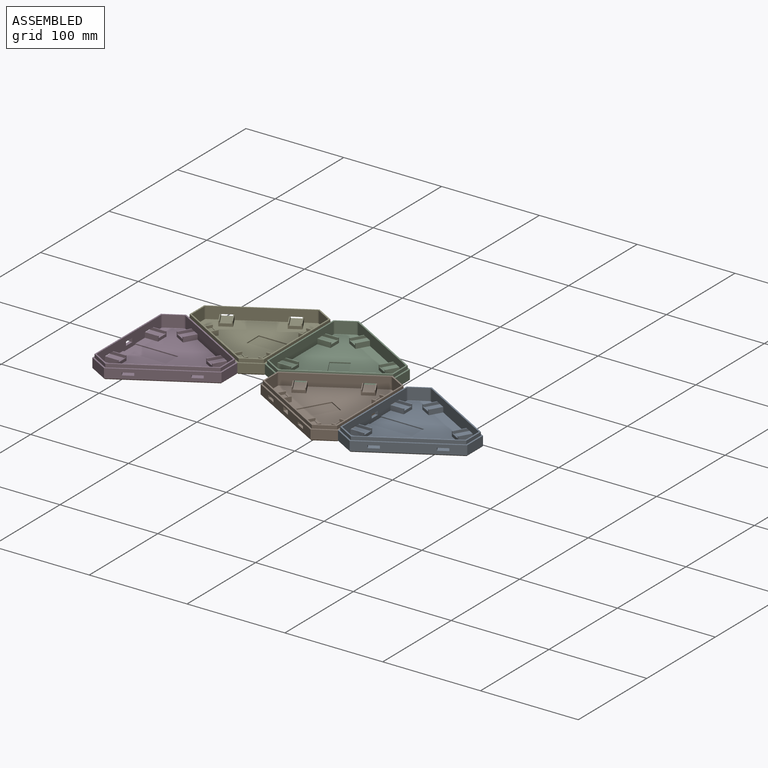
[diagram: assembled view]
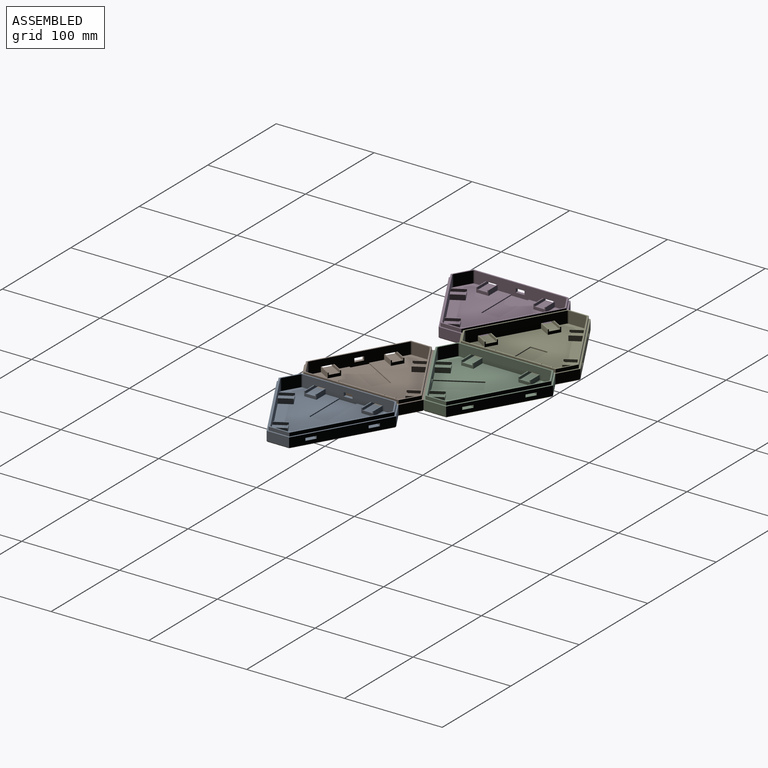
[diagram: assembled view, second angle]
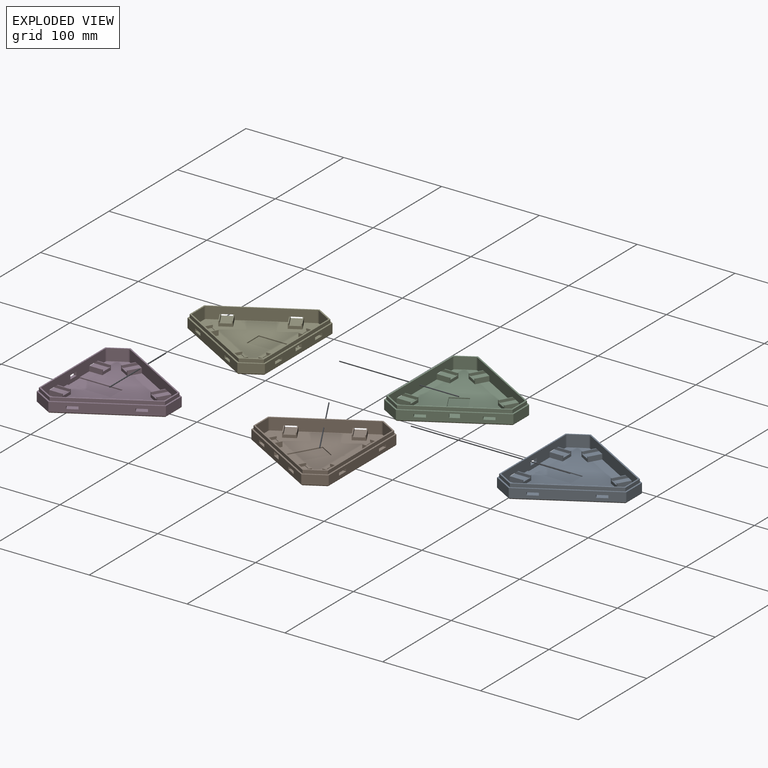
[diagram: exploded view]
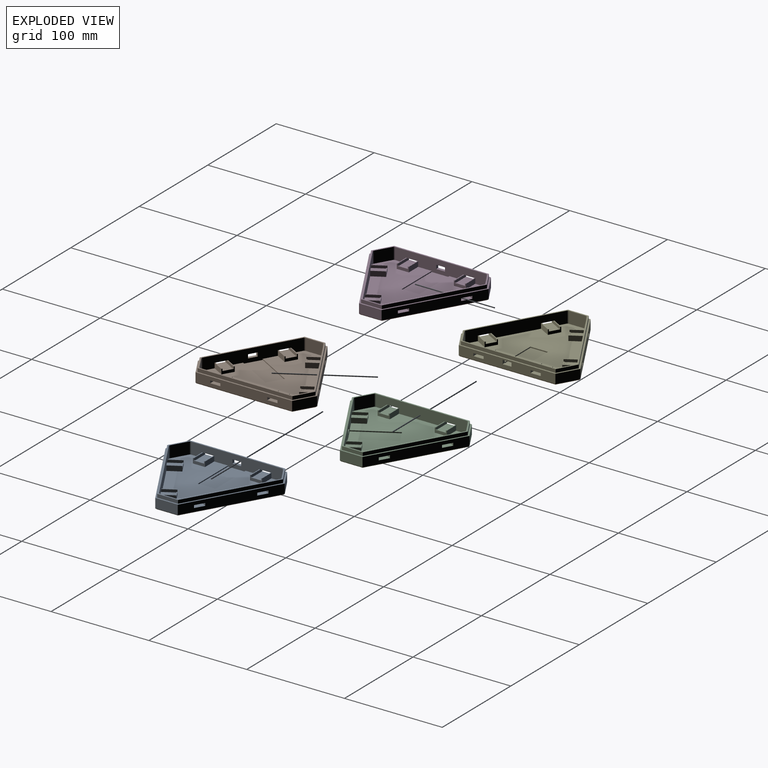
[diagram: exploded view, second angle]
ASSEMBLY  parts=5 mates=4
PART A: 108 faces, bbox 105.6x121.9x14 mm
  f0: plane 98.81x9.5mm, normal (-1,0,0), area 847.5mm2, adj f2,f3,f4,f15,f17,f22,f31,f42
  f1: plane 93.04x13mm, normal (1,0,0), area 972.9mm2, adj f32,f36,f44,f45,f80,f81,f82,f83
  f2: plane 15.45x10.4mm, normal (0,0,1), area 160.7mm2, adj f0,f3,f46,f92
  f3: plane 16.45x2.7mm, normal (0,1,0), area 43.9mm2, adj f0,f2,f45,f83,f84,f92,f93
  f4: plane 15.45x10.4mm, normal (0,0,1), area 160.7mm2, adj f0,f42,f43,f90
  f5: plane 18.58x16.73mm, normal (0,0,1), area 160.7mm2, adj f6,f13,f41,f78
  f6: plane 14.25x8.23mm, normal (-0.87,-0.5,0), area 43.9mm2, adj f5,f13,f40,f69,f70,f78,f79
  f7: plane 18.58x16.73mm, normal (0,0,1), area 160.7mm2, adj f13,f37,f39,f76
  f8: plane 18.58x16.73mm, normal (0,0,1), area 160.7mm2, adj f9,f11,f51,f64
  f9: plane 14.25x8.23mm, normal (0.87,-0.5,0), area 43.9mm2, adj f8,f11,f50,f57,f61,f64,f65
  f10: plane 18.58x16.73mm, normal (0,0,1), area 160.7mm2, adj f11,f47,f48,f62
  f11: plane 85.57x49.41mm, normal (0.5,0.87,0), area 882.6mm2, adj f8,f9,f10,f16,f17,f23,f31,f47
  f12: plane 80.57x46.52mm, normal (-0.5,-0.87,0), area 990mm2, adj f32,f36,f49,f50,f52,f53,f54,f55
  f13: plane 85.57x49.41mm, normal (0.5,-0.87,0), area 882.6mm2, adj f5,f6,f7,f15,f16,f19,f31,f37
  f14: plane 80.57x46.52mm, normal (-0.5,0.87,0), area 990mm2, adj f32,f36,f38,f40,f66,f67,f68,f69
  f15: plane 20x11.55mm, normal (-0.5,-0.87,0), area 219.4mm2, adj f0,f13,f20,f31
  f16: plane 23.09x9.5mm, normal (1,0,0), area 219.4mm2, adj f11,f13,f21,f31
  f17: plane 20x11.55mm, normal (-0.5,0.87,0), area 219.4mm2, adj f0,f11,f24,f31
  f18: plane 119.6x103.57mm, normal (0,0,-1), area 8049mm2, adj f19,f20,f21,f22,f23,f24
  f19: plane 85.57x49.98mm, normal (0.35,-0.61,-0.71), area 138.9mm2, adj f13,f18,f20,f21
  f20: plane 20x12.12mm, normal (-0.35,-0.61,-0.71), area 31.8mm2, adj f15,f18,f19,f22
  f21: plane 23.09x1mm, normal (0.71,0,-0.71), area 31.8mm2, adj f16,f18,f19,f23
  f22: plane 98.81x1mm, normal (-0.71,0,-0.71), area 138.9mm2, adj f0,f18,f20,f24
  f23: plane 85.57x49.98mm, normal (0.35,0.61,-0.71), area 138.9mm2, adj f11,f18,f21,f24
  f24: plane 20x12.12mm, normal (-0.35,0.61,-0.71), area 31.8mm2, adj f17,f18,f22,f23
  f25: plane 84.02x48.51mm, normal (0.5,0.87,0), area 339.6mm2, adj f26,f30,f31,f36
  f26: plane 21.3x3.5mm, normal (1,0,0), area 74.6mm2, adj f25,f27,f31,f36
  f27: plane 84.02x48.51mm, normal (0.5,-0.87,0), area 339.6mm2, adj f26,f28,f31,f36
  f28: plane 18.45x10.65mm, normal (-0.5,-0.87,0), area 74.6mm2, adj f27,f29,f31,f36
  f29: plane 97.02x3.5mm, normal (-1,0,0), area 339.6mm2, adj f28,f30,f31,f36
  f30: plane 18.45x10.65mm, normal (-0.5,0.87,0), area 74.6mm2, adj f25,f29,f31,f36
  f31: plane 121.91x105.57mm, normal (0,0,1), area 558.5mm2, adj f0,f11,f13,f15,f16,f17,f25,f26
  f32: plane 114.36x99.57mm, normal (0,0,1), area 5551.3mm2, adj f1,f12,f14,f33,f34,f35,f53,f54
  f33: plane 15x12mm, normal (0.5,-0.87,0), area 207.8mm2, adj f32,f36,f103,f104
  f34: plane 15x12mm, normal (0.5,0.87,0), area 207.8mm2, adj f32,f36,f105,f106
  f35: plane 17.32x12mm, normal (-1,0,0), area 207.8mm2, adj f32,f36,f102,f107
  f36: plane 118.33x102.47mm, normal (0,0,1), area 508.7mm2, adj f1,f12,f14,f25,f26,f27,f28,f29
  f37: plane 14.25x8.23mm, normal (-0.87,-0.5,0), area 43.9mm2, adj f7,f13,f38,f74,f75,f76,f77
  f38: plane 10.51x7.8mm, normal (0,0,-1), area 31.2mm2, adj f13,f14,f37,f39
  f39: plane 14.25x8.23mm, normal (0.87,0.5,0), area 43.9mm2, adj f7,f13,f38,f73,f75,f76,f77
  f40: plane 10.51x7.8mm, normal (0,0,-1), area 31.2mm2, adj f6,f13,f14,f41
  f41: plane 14.25x8.23mm, normal (0.87,0.5,0), area 43.9mm2, adj f5,f13,f40,f68,f70,f78,f79
  f42: plane 16.45x2.7mm, normal (0,-1,0), area 43.9mm2, adj f0,f4,f44,f87,f89,f90,f91
  f43: plane 16.45x2.7mm, normal (0,1,0), area 43.9mm2, adj f0,f4,f44,f88,f89,f90,f91
  f44: plane 10.4x3mm, normal (0,0,-1), area 31.2mm2, adj f0,f1,f42,f43
  f45: plane 10.4x3mm, normal (0,0,-1), area 31.2mm2, adj f0,f1,f3,f46
  f46: plane 16.45x2.7mm, normal (0,-1,0), area 43.9mm2, adj f0,f2,f45,f82,f84,f92,f93
  f47: plane 14.25x8.23mm, normal (-0.87,0.5,0), area 43.9mm2, adj f10,f11,f49,f55,f56,f62,f63
  f48: plane 14.25x8.23mm, normal (0.87,-0.5,0), area 43.9mm2, adj f10,f11,f49,f52,f56,f62,f63
  f49: plane 10.51x7.8mm, normal (0,0,-1), area 31.2mm2, adj f11,f12,f47,f48
  f50: plane 10.51x7.8mm, normal (0,0,-1), area 31.2mm2, adj f9,f11,f12,f51
  f51: plane 14.25x8.23mm, normal (-0.87,0.5,0), area 43.9mm2, adj f8,f11,f50,f60,f61,f64,f65
  f52: plane 12.15x7.59mm, normal (0,0,1), area 13.5mm2, adj f12,f48,f53,f56
  f53: plane 11.65x6.73mm, normal (-0.87,0.5,0), area 68.6mm2, adj f12,f32,f52,f56
  f54: plane 11.65x6.73mm, normal (0.87,-0.5,0), area 68.6mm2, adj f12,f32,f55,f56
  f55: plane 12.15x7.59mm, normal (0,0,1), area 13.4mm2, adj f12,f47,f54,f56
  f56: plane 10.74x6.2mm, normal (-0.5,-0.87,0), area 40.4mm2, adj f32,f47,f48,f52,f53,f54,f55,f63
  f57: plane 12.15x7.59mm, normal (0,0,1), area 13.5mm2, adj f9,f12,f58,f61
  f58: plane 11.65x6.73mm, normal (-0.87,0.5,0), area 68.6mm2, adj f12,f32,f57,f61
  f59: plane 11.65x6.73mm, normal (0.87,-0.5,0), area 68.6mm2, adj f12,f32,f60,f61
  f60: plane 12.15x7.59mm, normal (0,0,1), area 13.4mm2, adj f12,f51,f59,f61
  f61: plane 10.74x6.2mm, normal (-0.5,-0.87,0), area 40.4mm2, adj f9,f32,f51,f57,f58,f59,f60,f65
  f62: plane 9.01x5.2mm, normal (0.5,0.87,0), area 5.2mm2, adj f10,f47,f48,f63
  f63: plane 9.51x6.07mm, normal (0,0,1), area 10.4mm2, adj f47,f48,f56,f62
  f64: plane 9.01x5.2mm, normal (0.5,0.87,0), area 5.2mm2, adj f8,f9,f51,f65
  f65: plane 9.51x6.07mm, normal (0,0,1), area 10.4mm2, adj f9,f51,f61,f64
  f66: plane 11.65x6.73mm, normal (0.87,0.5,0), area 68.6mm2, adj f14,f32,f69,f70
  f67: plane 11.65x6.73mm, normal (-0.87,-0.5,0), area 68.6mm2, adj f14,f32,f68,f70
  f68: plane 12.15x7.59mm, normal (0,0,1), area 13.5mm2, adj f14,f41,f67,f70
  f69: plane 12.15x7.59mm, normal (0,0,1), area 13.4mm2, adj f6,f14,f66,f70
  f70: plane 10.74x6.2mm, normal (-0.5,0.87,0), area 40.4mm2, adj f6,f32,f41,f66,f67,f68,f69,f79
  f71: plane 11.65x6.73mm, normal (0.87,0.5,0), area 68.6mm2, adj f14,f32,f74,f75
  f72: plane 11.65x6.73mm, normal (-0.87,-0.5,0), area 68.6mm2, adj f14,f32,f73,f75
  f73: plane 12.15x7.59mm, normal (0,0,1), area 13.5mm2, adj f14,f39,f72,f75
  f74: plane 12.15x7.59mm, normal (0,0,1), area 13.5mm2, adj f14,f37,f71,f75
  f75: plane 10.74x6.2mm, normal (-0.5,0.87,0), area 40.4mm2, adj f32,f37,f39,f71,f72,f73,f74,f77
  f76: plane 9.01x5.2mm, normal (0.5,-0.87,0), area 5.2mm2, adj f7,f37,f39,f77
  f77: plane 9.51x6.07mm, normal (0,0,1), area 10.4mm2, adj f37,f39,f75,f76
  f78: plane 9.01x5.2mm, normal (0.5,-0.87,0), area 5.2mm2, adj f5,f6,f41,f79
  f79: plane 9.51x6.07mm, normal (0,0,1), area 10.4mm2, adj f6,f41,f70,f78
  f80: plane 13.45x5.1mm, normal (0,-1,0), area 68.6mm2, adj f1,f32,f83,f84
  f81: plane 13.45x5.1mm, normal (0,1,0), area 68.6mm2, adj f1,f32,f82,f84
  f82: plane 13.45x1mm, normal (0,0,1), area 13.5mm2, adj f1,f46,f81,f84
  f83: plane 13.45x1mm, normal (0,0,1), area 13.4mm2, adj f1,f3,f80,f84
  f84: plane 12.4x5.1mm, normal (1,0,0), area 40.4mm2, adj f3,f32,f46,f80,f81,f82,f83,f93
  f85: plane 13.45x5.1mm, normal (0,-1,0), area 68.6mm2, adj f1,f32,f88,f89
  f86: plane 13.45x5.1mm, normal (0,1,0), area 68.6mm2, adj f1,f32,f87,f89
  f87: plane 13.45x1mm, normal (0,0,1), area 13.4mm2, adj f1,f42,f86,f89
  f88: plane 13.45x1mm, normal (0,0,1), area 13.5mm2, adj f1,f43,f85,f89
  f89: plane 12.4x5.1mm, normal (1,0,0), area 40.4mm2, adj f32,f42,f43,f85,f86,f87,f88,f91
  f90: plane 10.4x0.5mm, normal (-1,0,0), area 5.2mm2, adj f4,f42,f43,f91
  f91: plane 10.4x1mm, normal (0,0,1), area 10.4mm2, adj f42,f43,f89,f90
  f92: plane 10.4x0.5mm, normal (-1,0,0), area 5.2mm2, adj f2,f3,f46,f93
  f93: plane 10.4x1mm, normal (0,0,1), area 10.4mm2, adj f3,f46,f84,f92
  f94: plane 18x1mm, normal (-1,0,0), area 18mm2, adj f32,f95,f96,f97
  f95: plane 44x1mm, normal (0,-1,0), area 44mm2, adj f1,f32,f94,f97
  f96: plane 44x1mm, normal (0,1,0), area 44mm2, adj f1,f32,f94,f97
  f97: plane 44x18mm, normal (0,0,1), area 792mm2, adj f1,f94,f95,f96
  f98: plane 9x3mm, normal (0,0,1), area 27mm2, adj f0,f1,f99,f101
  f99: plane 3.9x3mm, normal (0,-1,0), area 11.7mm2, adj f0,f1,f98,f100
  f100: plane 9x3mm, normal (0,0,-1), area 27mm2, adj f0,f1,f99,f101
  f101: plane 3.9x3mm, normal (0,1,0), area 11.7mm2, adj f0,f1,f98,f100
  f102: cylinder r=2mm len=12mm, axis (0,0,1), area 25.1mm2, adj f12,f32,f35,f36
  f103: cylinder r=2mm len=12mm, axis (0,0,1), area 25.1mm2, adj f12,f32,f33,f36
  f104: cylinder r=2mm len=12mm, axis (0,0,1), area 25.1mm2, adj f1,f32,f33,f36
  f105: cylinder r=2mm len=12mm, axis (0,0,-1), area 25.1mm2, adj f1,f32,f34,f36
  f106: cylinder r=2mm len=12mm, axis (0,0,-1), area 25.1mm2, adj f14,f32,f34,f36
  f107: cylinder r=2mm len=12mm, axis (0,0,1), area 25.1mm2, adj f14,f32,f35,f36
PART B: same geometry as A
PART C: same geometry as A
PART D: same geometry as A
PART E: same geometry as A
PLACE A t=(368.58,-25.54,-5.95)mm
PLACE B rot(axis=(0,0,1),60deg) t=(284.87,-25.54,-6)mm
PLACE C rot(axis=(0,0,1),120deg) t=(243.01,46.96,-5.95)mm
PLACE D t=(117.44,-25.54,-5.9)mm
PLACE E rot(axis=(0,0,1),180deg) t=(159.29,46.96,-5.9)mm
MATE fastened E.f0 <-> C.f11  axis (1,0,0) through (201.15,46.96,-0.2)mm
MATE fastened E.f31 <-> D.f31  axis (0,0,1) through (95.58,35.41,4.6)mm
MATE fastened B.f13 <-> A.f0  axis (1,0,0) through (326.73,-25.54,-0.25)mm
MATE fastened C.f0 <-> B.f11  axis (0.5,-0.87,0) through (263.94,10.71,-0.25)mm
